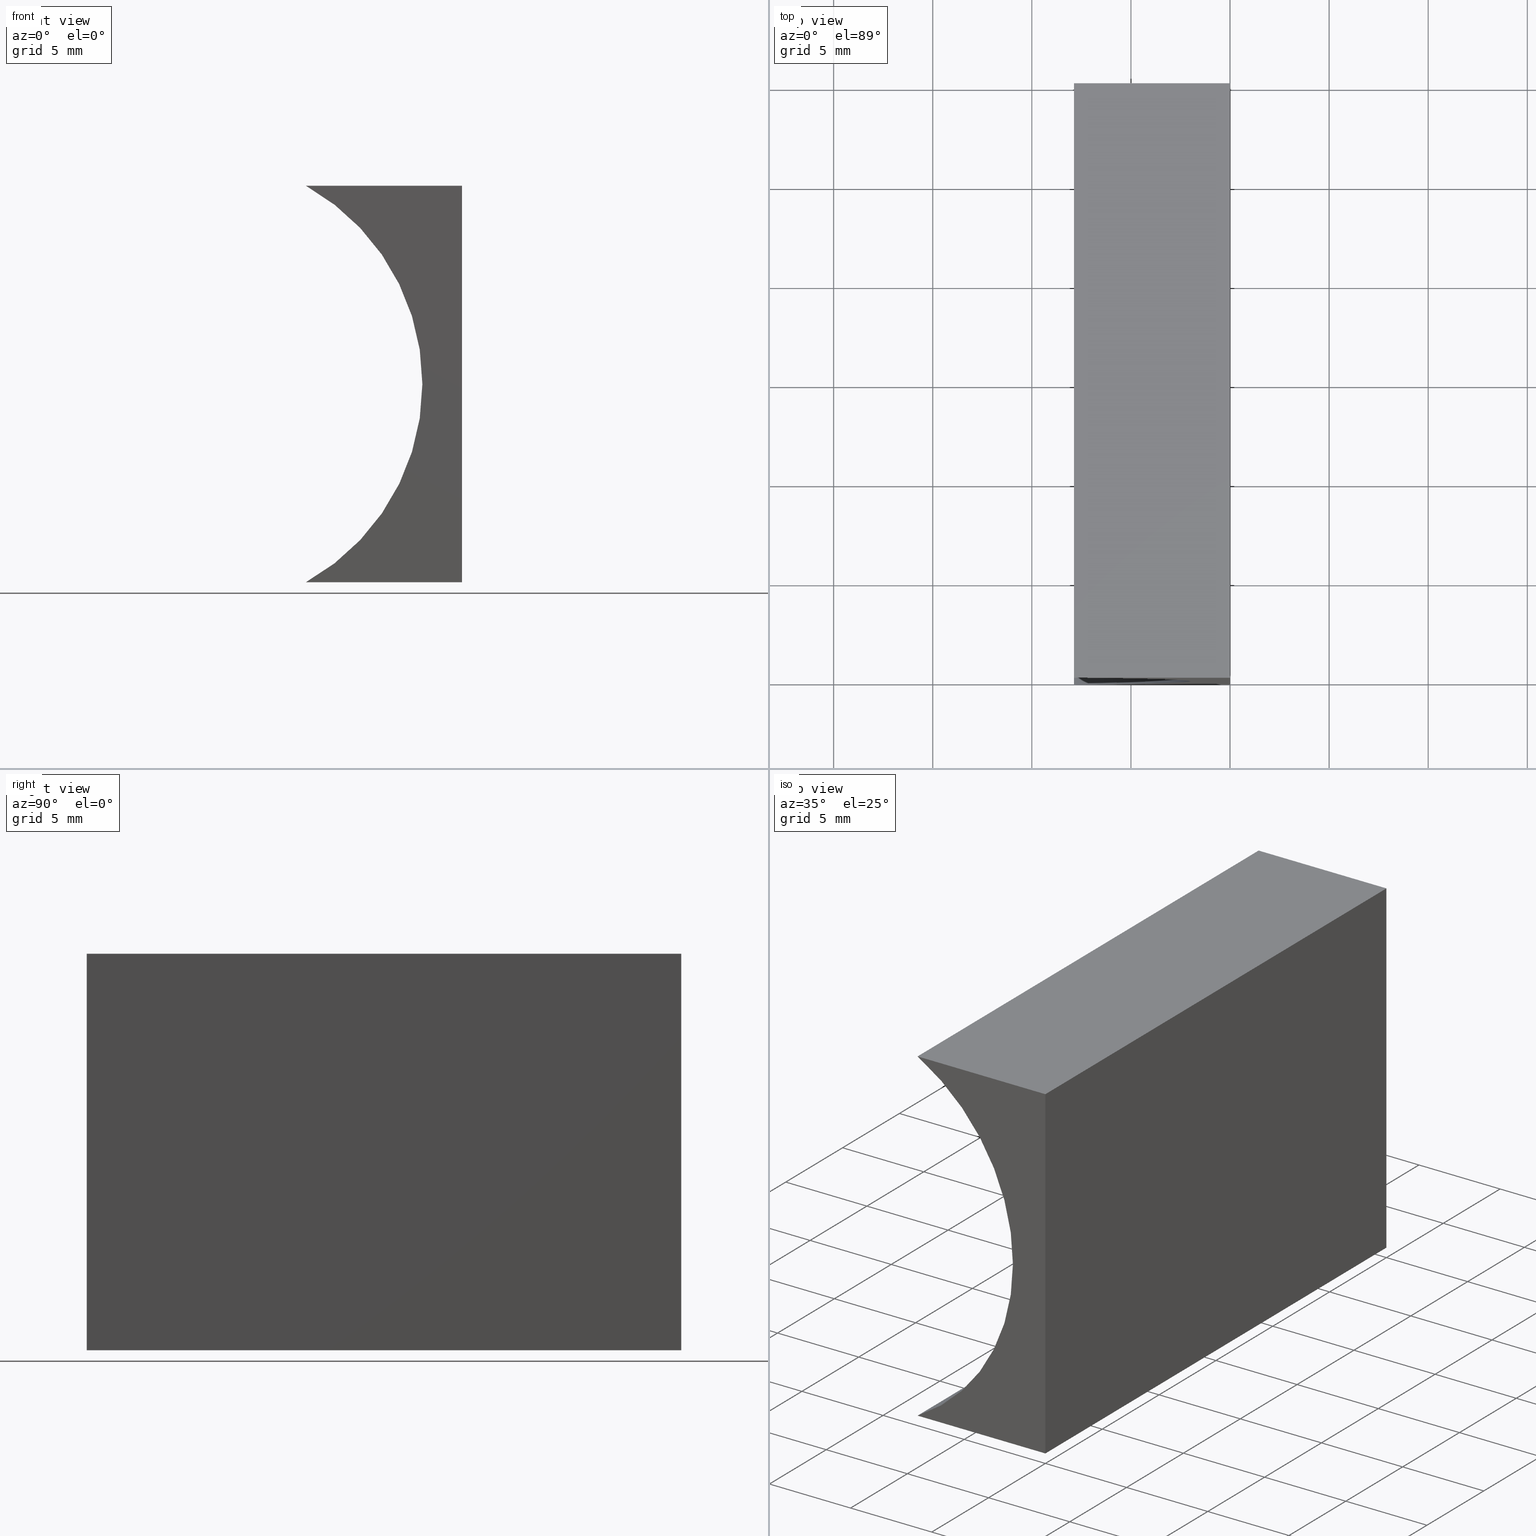
[diagram: canonical four-view strip — front | top / right | iso, engineering-drawing reading convention]
A machine part, canonical four-view strip (front | top / right | iso — engineering-drawing reading convention). The complete STEP part file that produces these views, byte-faithful:
ISO-10303-21;
HEADER;
FILE_DESCRIPTION (( 'STEP AP214' ),
    '1' );
FILE_NAME ('155486.STEP',
    '2019-07-04T02:22:15',
    ( 'user' ),
    ( '΢���й�' ),
    'SwSTEP 2.0',
    'SolidWorks 2016',
    '' );
FILE_SCHEMA (( 'AUTOMOTIVE_DESIGN' ));
ENDSEC;

DATA;
#1 = APPLICATION_CONTEXT ( 'automotive_design' ) ;
#2 = ADVANCED_FACE ( 'NONE', ( #146 ), #34, .T. ) ;
#3 = DIRECTION ( 'NONE',  ( 0.0000000000000000000, 0.0000000000000000000, -1.000000000000000000 ) ) ;
#4 = ORIENTED_EDGE ( 'NONE', *, *, #193, .T. ) ;
#5 = AXIS2_PLACEMENT_3D ( 'NONE', #88, #61, #7 ) ;
#6 = VECTOR ( 'NONE', #59, 1000.000000000000000 ) ;
#7 = DIRECTION ( 'NONE',  ( 1.224646799147353200E-016, 0.0000000000000000000, 1.000000000000000000 ) ) ;
#8 = ORIENTED_EDGE ( 'NONE', *, *, #138, .T. ) ;
#9 = LINE ( 'NONE', #164, #118 ) ;
#10 = DIRECTION ( 'NONE',  ( -1.224646799147353200E-016, -0.0000000000000000000, -1.000000000000000000 ) ) ;
#11 =( GEOMETRIC_REPRESENTATION_CONTEXT ( 3 ) GLOBAL_UNCERTAINTY_ASSIGNED_CONTEXT ( ( #157 ) ) GLOBAL_UNIT_ASSIGNED_CONTEXT ( ( #137, #115, #36 ) ) REPRESENTATION_CONTEXT ( 'NONE', 'WORKASPACE' ) );
#12 = VERTEX_POINT ( 'NONE', #191 ) ;
#13 = EDGE_LOOP ( 'NONE', ( #114, #57, #41, #83 ) ) ;
#14 = DIRECTION ( 'NONE',  ( 1.000000000000000000, -0.0000000000000000000, -4.406744573704530200E-016 ) ) ;
#15 = PRESENTATION_LAYER_ASSIGNMENT (  '', '', ( #122 ) ) ;
#16 = CARTESIAN_POINT ( 'NONE',  ( 0.0000000000000000000, 0.0000000000000000000, 0.0000000000000000000 ) ) ;
#17 = ADVANCED_FACE ( 'NONE', ( #32 ), #42, .F. ) ;
#18 = ORIENTED_EDGE ( 'NONE', *, *, #89, .F. ) ;
#19 = CARTESIAN_POINT ( 'NONE',  ( -13.44999999999999900, 0.0000000000000000000, 10.00000000000000200 ) ) ;
#20 = EDGE_LOOP ( 'NONE', ( #178, #124, #48, #153 ) ) ;
#21 =( NAMED_UNIT ( * ) SI_UNIT ( $, .STERADIAN. ) SOLID_ANGLE_UNIT ( ) );
#22 = SURFACE_SIDE_STYLE ('',( #90 ) ) ;
#23 = AXIS2_PLACEMENT_3D ( 'NONE', #55, #47, #51 ) ;
#24 = ADVANCED_FACE ( 'NONE', ( #125 ), #62, .F. ) ;
#25 = LINE ( 'NONE', #150, #103 ) ;
#26 = STYLED_ITEM ( 'NONE', ( #66 ), #105 ) ;
#27 = UNCERTAINTY_MEASURE_WITH_UNIT (LENGTH_MEASURE( 1.000000000000000100E-005 ), #181, 'distance_accuracy_value', 'NONE');
#28 = CARTESIAN_POINT ( 'NONE',  ( 2.449293598294706500E-015, 30.00000000000000000, 20.00000000000000000 ) ) ;
#29 = FACE_OUTER_BOUND ( 'NONE', #45, .T. ) ;
#30 = AXIS2_PLACEMENT_3D ( 'NONE', #177, #202, #133 ) ;
#31 = CARTESIAN_POINT ( 'NONE',  ( 0.0000000000000000000, 30.00000000000000000, 0.0000000000000000000 ) ) ;
#32 = FACE_OUTER_BOUND ( 'NONE', #70, .T. ) ;
#33 = DIRECTION ( 'NONE',  ( -1.224646799147353200E-016, -0.0000000000000000000, -1.000000000000000000 ) ) ;
#34 = PLANE ( 'NONE',  #23 ) ;
#35 = CARTESIAN_POINT ( 'NONE',  ( -7.873038461671090900, 0.0000000000000000000, -3.469446951953614200E-015 ) ) ;
#36 =( NAMED_UNIT ( * ) SI_UNIT ( $, .STERADIAN. ) SOLID_ANGLE_UNIT ( ) );
#37 = SHAPE_DEFINITION_REPRESENTATION ( #200, #174 ) ;
#38 = ORIENTED_EDGE ( 'NONE', *, *, #89, .T. ) ;
#39 = DIRECTION ( 'NONE',  ( -0.0000000000000000000, -1.000000000000000000, -0.0000000000000000000 ) ) ;
#40 =( LENGTH_UNIT ( ) NAMED_UNIT ( * ) SI_UNIT ( .MILLI., .METRE. ) );
#41 = ORIENTED_EDGE ( 'NONE', *, *, #171, .F. ) ;
#42 = CYLINDRICAL_SURFACE ( 'NONE', #140, 11.45000000000000100 ) ;
#43 = VECTOR ( 'NONE', #158, 1000.000000000000000 ) ;
#44 = SURFACE_STYLE_USAGE ( .BOTH. , #22 ) ;
#45 = EDGE_LOOP ( 'NONE', ( #91, #54, #168, #18 ) ) ;
#46 = LINE ( 'NONE', #80, #155 ) ;
#47 = DIRECTION ( 'NONE',  ( 0.0000000000000000000, 1.000000000000000000, 0.0000000000000000000 ) ) ;
#48 = ORIENTED_EDGE ( 'NONE', *, *, #165, .F. ) ;
#49 = FACE_OUTER_BOUND ( 'NONE', #13, .T. ) ;
#50 = EDGE_LOOP ( 'NONE', ( #107, #77, #8, #204 ) ) ;
#51 = DIRECTION ( 'NONE',  ( 0.0000000000000000000, -0.0000000000000000000, 1.000000000000000000 ) ) ;
#52 = SURFACE_STYLE_FILL_AREA ( #100 ) ;
#53 = EDGE_CURVE ( 'NONE', #12, #108, #106, .T. ) ;
#54 = ORIENTED_EDGE ( 'NONE', *, *, #197, .F. ) ;
#55 = CARTESIAN_POINT ( 'NONE',  ( -13.44999999999999900, 30.00000000000000000, 10.00000000000000200 ) ) ;
#56 = ORIENTED_EDGE ( 'NONE', *, *, #53, .T. ) ;
#57 = ORIENTED_EDGE ( 'NONE', *, *, #60, .F. ) ;
#58 = VECTOR ( 'NONE', #144, 1000.000000000000000 ) ;
#59 = DIRECTION ( 'NONE',  ( -1.000000000000000000, 0.0000000000000000000, -4.406744573704530200E-016 ) ) ;
#60 = EDGE_CURVE ( 'NONE', #112, #163, #113, .T. ) ;
#61 = DIRECTION ( 'NONE',  ( -1.000000000000000000, 0.0000000000000000000, 1.224646799147353200E-016 ) ) ;
#62 = PLANE ( 'NONE',  #86 ) ;
#63 = DIRECTION ( 'NONE',  ( 0.0000000000000000000, 0.0000000000000000000, 1.000000000000000000 ) ) ;
#64 = LINE ( 'NONE', #180, #43 ) ;
#65 = CARTESIAN_POINT ( 'NONE',  ( 2.449293598294706500E-015, 30.00000000000000000, 20.00000000000000000 ) ) ;
#66 = PRESENTATION_STYLE_ASSIGNMENT (( #44 ) ) ;
#67 = CARTESIAN_POINT ( 'NONE',  ( -13.44999999999999900, 0.0000000000000000000, 10.00000000000000200 ) ) ;
#68 = PRESENTATION_STYLE_ASSIGNMENT (( #160 ) ) ;
#69 = LINE ( 'NONE', #81, #6 ) ;
#70 = EDGE_LOOP ( 'NONE', ( #38, #162, #141, #173 ) ) ;
#71 = COLOUR_RGB ( '',1.000000000000000000, 1.000000000000000000, 1.000000000000000000 ) ;
#72 = FILL_AREA_STYLE ('',( #110 ) ) ;
#73 = CARTESIAN_POINT ( 'NONE',  ( -7.873038461671089100, 30.00000000000000000, 20.00000000000000400 ) ) ;
#74 =( NAMED_UNIT ( * ) PLANE_ANGLE_UNIT ( ) SI_UNIT ( $, .RADIAN. ) );
#75 = ADVANCED_FACE ( 'NONE', ( #49 ), #127, .F. ) ;
#76 = VERTEX_POINT ( 'NONE', #35 ) ;
#77 = ORIENTED_EDGE ( 'NONE', *, *, #84, .T. ) ;
#78 = AXIS2_PLACEMENT_3D ( 'NONE', #67, #145, #190 ) ;
#79 = DIRECTION ( 'NONE',  ( 1.000000000000000000, 0.0000000000000000000, 0.0000000000000000000 ) ) ;
#80 = CARTESIAN_POINT ( 'NONE',  ( 0.0000000000000000000, 0.0000000000000000000, 0.0000000000000000000 ) ) ;
#81 = CARTESIAN_POINT ( 'NONE',  ( 0.0000000000000000000, 30.00000000000000000, 0.0000000000000000000 ) ) ;
#82 = MECHANICAL_DESIGN_GEOMETRIC_PRESENTATION_REPRESENTATION (  '', ( #122 ), #11 ) ;
#83 = ORIENTED_EDGE ( 'NONE', *, *, #151, .T. ) ;
#84 = EDGE_CURVE ( 'NONE', #135, #101, #131, .T. ) ;
#85 =( NAMED_UNIT ( * ) SI_UNIT ( $, .STERADIAN. ) SOLID_ANGLE_UNIT ( ) );
#86 = AXIS2_PLACEMENT_3D ( 'NONE', #148, #109, #195 ) ;
#87 = PRODUCT_RELATED_PRODUCT_CATEGORY ( 'part', '', ( #188 ) ) ;
#88 = CARTESIAN_POINT ( 'NONE',  ( 0.0000000000000000000, 30.00000000000000000, 0.0000000000000000000 ) ) ;
#89 = EDGE_CURVE ( 'NONE', #76, #12, #182, .T. ) ;
#90 = SURFACE_STYLE_FILL_AREA ( #72 ) ;
#91 = ORIENTED_EDGE ( 'NONE', *, *, #183, .F. ) ;
#92 =( GEOMETRIC_REPRESENTATION_CONTEXT ( 3 ) GLOBAL_UNCERTAINTY_ASSIGNED_CONTEXT ( ( #27 ) ) GLOBAL_UNIT_ASSIGNED_CONTEXT ( ( #181, #185, #85 ) ) REPRESENTATION_CONTEXT ( 'NONE', 'WORKASPACE' ) );
#93 = PRESENTATION_LAYER_ASSIGNMENT (  '', '', ( #26 ) ) ;
#94 = APPLICATION_CONTEXT ( 'automotive_design' ) ;
#95 = DIRECTION ( 'NONE',  ( 0.0000000000000000000, 0.0000000000000000000, 1.000000000000000000 ) ) ;
#96 = PRODUCT_DEFINITION_FORMATION_WITH_SPECIFIED_SOURCE ( '�κ�', '', #188, .NOT_KNOWN. ) ;
#97 = LINE ( 'NONE', #28, #159 ) ;
#98 = PRODUCT_DEFINITION_CONTEXT ( 'detailed design', #94, 'design' ) ;
#99 = CARTESIAN_POINT ( 'NONE',  ( -7.873038461671090900, 30.00000000000000000, -3.469446951953614200E-015 ) ) ;
#100 = FILL_AREA_STYLE ('',( #166 ) ) ;
#101 = VERTEX_POINT ( 'NONE', #73 ) ;
#102 = COLOUR_RGB ( '',1.000000000000000000, 1.000000000000000000, 1.000000000000000000 ) ;
#103 = VECTOR ( 'NONE', #156, 1000.000000000000000 ) ;
#104 = MECHANICAL_DESIGN_GEOMETRIC_PRESENTATION_REPRESENTATION (  '', ( #26 ), #161 ) ;
#105 = MANIFOLD_SOLID_BREP ( '͹̨-����1', #132 ) ;
#106 = LINE ( 'NONE', #152, #119 ) ;
#107 = ORIENTED_EDGE ( 'NONE', *, *, #165, .T. ) ;
#108 = VERTEX_POINT ( 'NONE', #128 ) ;
#109 = DIRECTION ( 'NONE',  ( -4.406744573704530200E-016, 0.0000000000000000000, 1.000000000000000000 ) ) ;
#110 = FILL_AREA_STYLE_COLOUR ( '', #71 ) ;
#111 = CARTESIAN_POINT ( 'NONE',  ( -13.44999999999999900, 30.00000000000000000, 10.00000000000000200 ) ) ;
#112 = VERTEX_POINT ( 'NONE', #129 ) ;
#113 = LINE ( 'NONE', #31, #194 ) ;
#114 = ORIENTED_EDGE ( 'NONE', *, *, #197, .T. ) ;
#115 =( NAMED_UNIT ( * ) PLANE_ANGLE_UNIT ( ) SI_UNIT ( $, .RADIAN. ) );
#116 = AXIS2_PLACEMENT_3D ( 'NONE', #117, #95, #79 ) ;
#117 = CARTESIAN_POINT ( 'NONE',  ( 0.0000000000000000000, 0.0000000000000000000, 0.0000000000000000000 ) ) ;
#118 = VECTOR ( 'NONE', #33, 1000.000000000000000 ) ;
#119 = VECTOR ( 'NONE', #14, 1000.000000000000000 ) ;
#120 = VERTEX_POINT ( 'NONE', #65 ) ;
#121 = DIRECTION ( 'NONE',  ( -0.0000000000000000000, -1.000000000000000000, -0.0000000000000000000 ) ) ;
#122 = STYLED_ITEM ( 'NONE', ( #68 ), #174 ) ;
#123 = ADVANCED_FACE ( 'NONE', ( #29 ), #130, .F. ) ;
#124 = ORIENTED_EDGE ( 'NONE', *, *, #126, .F. ) ;
#125 = FACE_OUTER_BOUND ( 'NONE', #20, .T. ) ;
#126 = EDGE_CURVE ( 'NONE', #135, #76, #154, .T. ) ;
#127 = PLANE ( 'NONE',  #5 ) ;
#128 = CARTESIAN_POINT ( 'NONE',  ( 2.449293598294706500E-015, 0.0000000000000000000, 20.00000000000000000 ) ) ;
#129 = CARTESIAN_POINT ( 'NONE',  ( 0.0000000000000000000, 30.00000000000000000, 0.0000000000000000000 ) ) ;
#130 = PLANE ( 'NONE',  #78 ) ;
#131 = CIRCLE ( 'NONE', #186, 11.45000000000000100 ) ;
#132 = CLOSED_SHELL ( 'NONE', ( #24, #17, #179, #75, #2, #123 ) ) ;
#133 = DIRECTION ( 'NONE',  ( -1.000000000000000000, 0.0000000000000000000, 4.406744573704530200E-016 ) ) ;
#134 = CARTESIAN_POINT ( 'NONE',  ( 0.0000000000000000000, 0.0000000000000000000, 0.0000000000000000000 ) ) ;
#135 = VERTEX_POINT ( 'NONE', #99 ) ;
#136 = LINE ( 'NONE', #16, #196 ) ;
#137 =( LENGTH_UNIT ( ) NAMED_UNIT ( * ) SI_UNIT ( .MILLI., .METRE. ) );
#138 = EDGE_CURVE ( 'NONE', #101, #120, #25, .T. ) ;
#139 = SURFACE_SIDE_STYLE ('',( #52 ) ) ;
#140 = AXIS2_PLACEMENT_3D ( 'NONE', #172, #39, #3 ) ;
#141 = ORIENTED_EDGE ( 'NONE', *, *, #84, .F. ) ;
#142 = CARTESIAN_POINT ( 'NONE',  ( -7.873038461671090900, 30.00000000000000000, -3.469446951953614200E-015 ) ) ;
#143 = PRODUCT_CONTEXT ( 'NONE', #1, 'mechanical' ) ;
#144 = DIRECTION ( 'NONE',  ( -0.0000000000000000000, -1.000000000000000000, -0.0000000000000000000 ) ) ;
#145 = DIRECTION ( 'NONE',  ( 0.0000000000000000000, 1.000000000000000000, 0.0000000000000000000 ) ) ;
#146 = FACE_OUTER_BOUND ( 'NONE', #50, .T. ) ;
#147 = DIRECTION ( 'NONE',  ( -0.0000000000000000000, -1.000000000000000000, -0.0000000000000000000 ) ) ;
#148 = CARTESIAN_POINT ( 'NONE',  ( 0.0000000000000000000, 30.00000000000000000, 0.0000000000000000000 ) ) ;
#149 = FACE_OUTER_BOUND ( 'NONE', #203, .T. ) ;
#150 = CARTESIAN_POINT ( 'NONE',  ( 2.449293598294706500E-015, 30.00000000000000000, 20.00000000000000000 ) ) ;
#151 = EDGE_CURVE ( 'NONE', #120, #108, #97, .T. ) ;
#152 = CARTESIAN_POINT ( 'NONE',  ( 2.449293598294706500E-015, 0.0000000000000000000, 20.00000000000000000 ) ) ;
#153 = ORIENTED_EDGE ( 'NONE', *, *, #60, .T. ) ;
#154 = LINE ( 'NONE', #142, #58 ) ;
#155 = VECTOR ( 'NONE', #192, 1000.000000000000000 ) ;
#156 = DIRECTION ( 'NONE',  ( 1.000000000000000000, -0.0000000000000000000, -4.406744573704530200E-016 ) ) ;
#157 = UNCERTAINTY_MEASURE_WITH_UNIT (LENGTH_MEASURE( 1.000000000000000100E-005 ), #137, 'distance_accuracy_value', 'NONE');
#158 = DIRECTION ( 'NONE',  ( -0.0000000000000000000, -1.000000000000000000, -0.0000000000000000000 ) ) ;
#159 = VECTOR ( 'NONE', #189, 1000.000000000000000 ) ;
#160 = SURFACE_STYLE_USAGE ( .BOTH. , #139 ) ;
#161 =( GEOMETRIC_REPRESENTATION_CONTEXT ( 3 ) GLOBAL_UNCERTAINTY_ASSIGNED_CONTEXT ( ( #169 ) ) GLOBAL_UNIT_ASSIGNED_CONTEXT ( ( #40, #74, #21 ) ) REPRESENTATION_CONTEXT ( 'NONE', 'WORKASPACE' ) );
#162 = ORIENTED_EDGE ( 'NONE', *, *, #193, .F. ) ;
#163 = VERTEX_POINT ( 'NONE', #134 ) ;
#164 = CARTESIAN_POINT ( 'NONE',  ( 0.0000000000000000000, 30.00000000000000000, 0.0000000000000000000 ) ) ;
#165 = EDGE_CURVE ( 'NONE', #112, #135, #69, .T. ) ;
#166 = FILL_AREA_STYLE_COLOUR ( '', #102 ) ;
#167 = PRODUCT_DEFINITION ( 'δ֪', '', #96, #98 ) ;
#168 = ORIENTED_EDGE ( 'NONE', *, *, #53, .F. ) ;
#169 = UNCERTAINTY_MEASURE_WITH_UNIT (LENGTH_MEASURE( 1.000000000000000100E-005 ), #40, 'distance_accuracy_value', 'NONE');
#170 = APPLICATION_PROTOCOL_DEFINITION ( 'draft international standard', 'automotive_design', 1998, #1 ) ;
#171 = EDGE_CURVE ( 'NONE', #120, #112, #9, .T. ) ;
#172 = CARTESIAN_POINT ( 'NONE',  ( -13.44999999999999900, 30.00000000000000000, 10.00000000000000200 ) ) ;
#173 = ORIENTED_EDGE ( 'NONE', *, *, #126, .T. ) ;
#174 = ADVANCED_BREP_SHAPE_REPRESENTATION ( '155486', ( #105, #116 ), #92 ) ;
#175 = APPLICATION_PROTOCOL_DEFINITION ( 'draft international standard', 'automotive_design', 1998, #94 ) ;
#176 = AXIS2_PLACEMENT_3D ( 'NONE', #19, #121, #63 ) ;
#177 = CARTESIAN_POINT ( 'NONE',  ( 2.449293598294706500E-015, 30.00000000000000000, 20.00000000000000000 ) ) ;
#178 = ORIENTED_EDGE ( 'NONE', *, *, #183, .T. ) ;
#179 = ADVANCED_FACE ( 'NONE', ( #149 ), #184, .F. ) ;
#180 = CARTESIAN_POINT ( 'NONE',  ( -7.873038461671089100, 30.00000000000000000, 20.00000000000000400 ) ) ;
#181 =( LENGTH_UNIT ( ) NAMED_UNIT ( * ) SI_UNIT ( .MILLI., .METRE. ) );
#182 = CIRCLE ( 'NONE', #176, 11.45000000000000100 ) ;
#183 = EDGE_CURVE ( 'NONE', #163, #76, #46, .T. ) ;
#184 = PLANE ( 'NONE',  #30 ) ;
#185 =( NAMED_UNIT ( * ) PLANE_ANGLE_UNIT ( ) SI_UNIT ( $, .RADIAN. ) );
#186 = AXIS2_PLACEMENT_3D ( 'NONE', #111, #147, #199 ) ;
#187 = DIRECTION ( 'NONE',  ( -0.0000000000000000000, -1.000000000000000000, -0.0000000000000000000 ) ) ;
#188 = PRODUCT ( '155486', '155486', '', ( #143 ) ) ;
#189 = DIRECTION ( 'NONE',  ( -0.0000000000000000000, -1.000000000000000000, -0.0000000000000000000 ) ) ;
#190 = DIRECTION ( 'NONE',  ( 0.0000000000000000000, -0.0000000000000000000, 1.000000000000000000 ) ) ;
#191 = CARTESIAN_POINT ( 'NONE',  ( -7.873038461671089100, 0.0000000000000000000, 20.00000000000000400 ) ) ;
#192 = DIRECTION ( 'NONE',  ( -1.000000000000000000, 0.0000000000000000000, -4.406744573704530200E-016 ) ) ;
#193 = EDGE_CURVE ( 'NONE', #101, #12, #64, .T. ) ;
#194 = VECTOR ( 'NONE', #187, 1000.000000000000000 ) ;
#195 = DIRECTION ( 'NONE',  ( 1.000000000000000000, 0.0000000000000000000, 4.406744573704530200E-016 ) ) ;
#196 = VECTOR ( 'NONE', #10, 1000.000000000000000 ) ;
#197 = EDGE_CURVE ( 'NONE', #108, #163, #136, .T. ) ;
#198 = ORIENTED_EDGE ( 'NONE', *, *, #138, .F. ) ;
#199 = DIRECTION ( 'NONE',  ( 0.0000000000000000000, 0.0000000000000000000, 1.000000000000000000 ) ) ;
#200 = PRODUCT_DEFINITION_SHAPE ( 'NONE', 'NONE',  #167 ) ;
#201 = ORIENTED_EDGE ( 'NONE', *, *, #151, .F. ) ;
#202 = DIRECTION ( 'NONE',  ( -4.406744573704530200E-016, 0.0000000000000000000, -1.000000000000000000 ) ) ;
#203 = EDGE_LOOP ( 'NONE', ( #56, #201, #198, #4 ) ) ;
#204 = ORIENTED_EDGE ( 'NONE', *, *, #171, .T. ) ;
ENDSEC;
END-ISO-10303-21;
